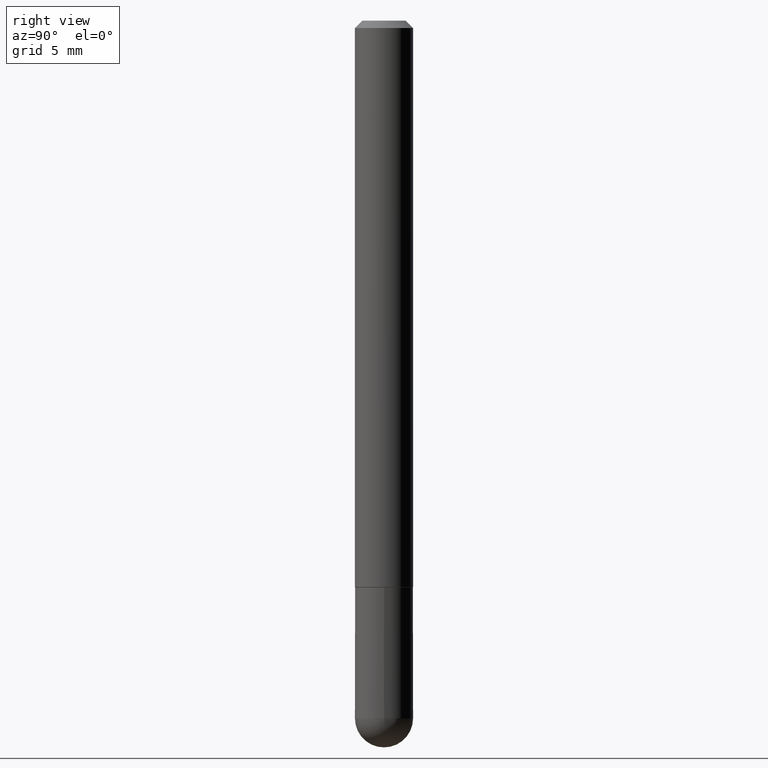
[diagram: clean part render]
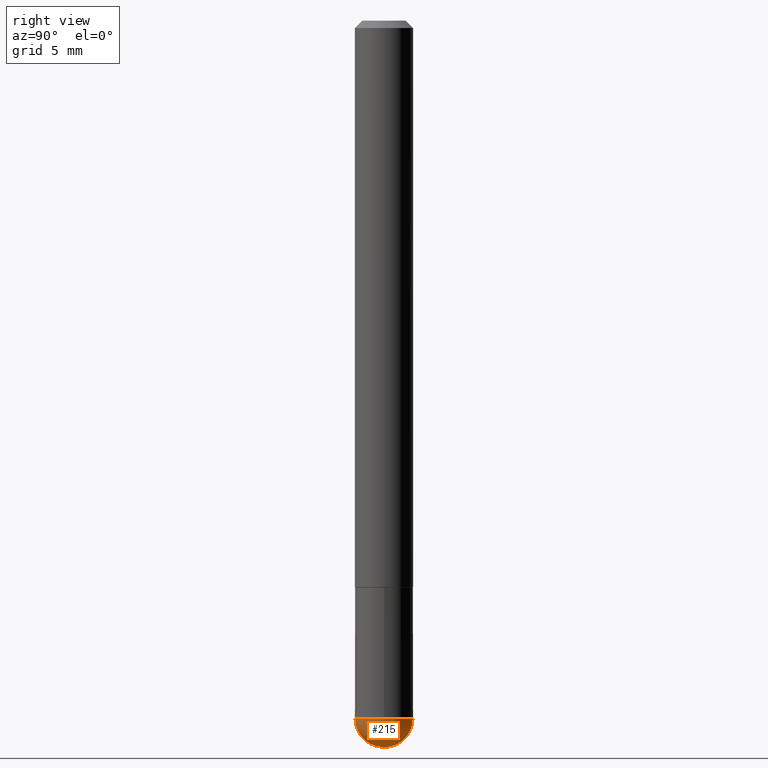
[diagram: same view with one face highlighted and labeled with its STEP entity id]
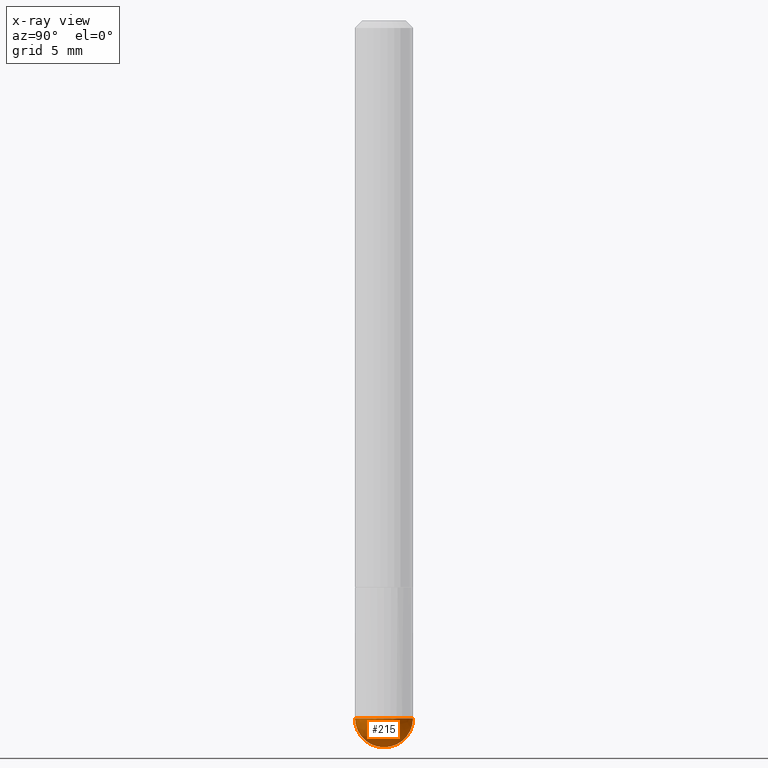
[diagram: x-ray of the same camera — body ghosted, the highlighted face saturated]
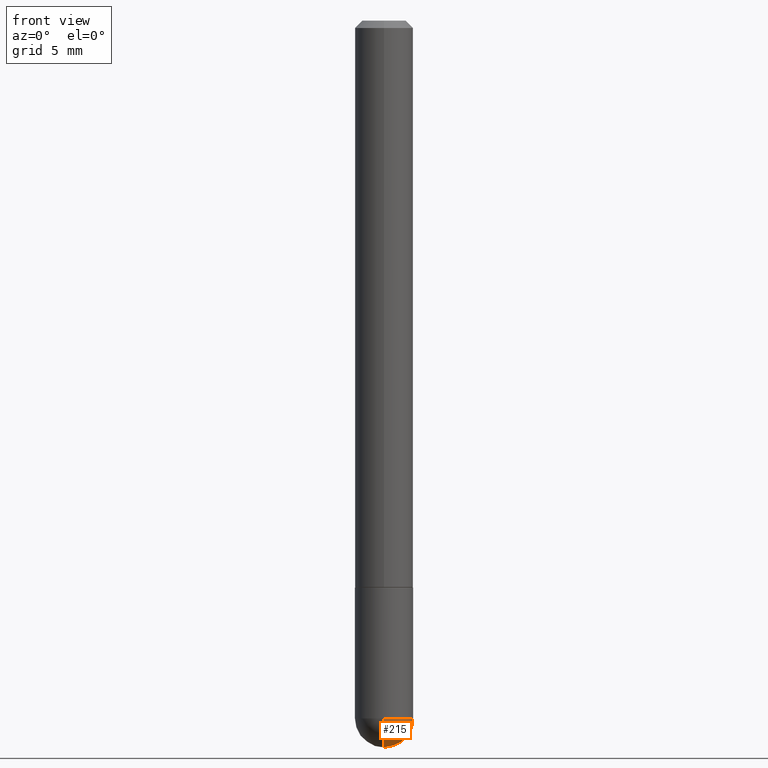
[diagram: same view with one face highlighted and labeled with its STEP entity id]
A machine part, right view. The second image highlights one B-rep face of the part: STEP entity #215.
The next image is the same camera in x-ray: the body ghosted, the highlighted face saturated — about 0% of this face is hidden behind the body in this view.
A second angle (front view) of the same face is appended — the face is thin or edge-on in the first view.
In plain terms, the highlighted spherical surface has radius 2.0003 mm.
Its self-contained STEP definition (entity closure, byte-faithful):
#1 = AXIS2_PLACEMENT_3D ( 'NONE', #28, #101, #190 ) ;
#5 = CARTESIAN_POINT ( 'NONE',  ( -5.595524044110351185E-16, -0.07875000000000693945, -1.889750000000000041 ) ) ;
#14 = AXIS2_PLACEMENT_3D ( 'NONE', #219, #34, #214 ) ;
#21 = ORIENTED_EDGE ( 'NONE', *, *, #61, .T. ) ;
#28 = CARTESIAN_POINT ( 'NONE',  ( 4.290204898574475789E-29, -7.072209228218884542E-15, -1.889750000000000041 ) ) ;
#34 = DIRECTION ( 'NONE',  ( -2.445468806185136597E-29, 3.491481338843145583E-15, 1.000000000000000000 ) ) ;
#52 = ORIENTED_EDGE ( 'NONE', *, *, #353, .F. ) ;
#56 = DIRECTION ( 'NONE',  ( 1.000000000000000000, -6.982962677686265922E-15, 4.883557194083112340E-29 ) ) ;
#57 = AXIS2_PLACEMENT_3D ( 'NONE', #68, #136, #379 ) ;
#61 = EDGE_CURVE ( 'NONE', #74, #245, #341, .T. ) ;
#68 = CARTESIAN_POINT ( 'NONE',  ( 4.621324676488362597E-29, -6.598026860078835823E-15, -1.889750000000000263 ) ) ;
#74 = VERTEX_POINT ( 'NONE', #177 ) ;
#83 = VERTEX_POINT ( 'NONE', #325 ) ;
#90 = VERTEX_POINT ( 'NONE', #5 ) ;
#101 = DIRECTION ( 'NONE',  ( -1.000000000000000000, 6.982962677686265922E-15, -4.883557194083112340E-29 ) ) ;
#130 = DIRECTION ( 'NONE',  ( -1.000000000000000000, 7.105427357601001070E-15, -4.926315508542082329E-29 ) ) ;
#136 = DIRECTION ( 'NONE',  ( -2.445468806185136597E-29, 3.491481338843145583E-15, 1.000000000000000000 ) ) ;
#145 = DIRECTION ( 'NONE',  ( 6.982962677686266711E-15, 1.000000000000000000, 0.000000000000000000 ) ) ;
#177 = CARTESIAN_POINT ( 'NONE',  ( 4.486152784325199885E-29, -7.342341336881140459E-15, -1.968500000000000361 ) ) ;
#178 = EDGE_LOOP ( 'NONE', ( #52, #21, #228, #303 ) ) ;
#190 = DIRECTION ( 'NONE',  ( 6.982962677686265922E-15, 1.000000000000000000, -3.469013325287941460E-15 ) ) ;
#214 = DIRECTION ( 'NONE',  ( 1.000000000000000000, -6.982962677686264344E-15, 0.000000000000000000 ) ) ;
#215 = ADVANCED_FACE ( 'NONE', ( #223 ), #338, .T. ) ;
#219 = CARTESIAN_POINT ( 'NONE',  ( 4.621324676488362597E-29, -6.598026860078835823E-15, -1.889750000000000263 ) ) ;
#223 = FACE_OUTER_BOUND ( 'NONE', #178, .T. ) ;
#228 = ORIENTED_EDGE ( 'NONE', *, *, #265, .F. ) ;
#235 = EDGE_CURVE ( 'NONE', #90, #83, #241, .T. ) ;
#241 = CIRCLE ( 'NONE', #57, 0.07874999999999997280 ) ;
#245 = VERTEX_POINT ( 'NONE', #287 ) ;
#265 = EDGE_CURVE ( 'NONE', #83, #245, #304, .T. ) ;
#287 = CARTESIAN_POINT ( 'NONE',  ( 5.499083108678389024E-16, 0.07874999999999328371, -1.889750000000000485 ) ) ;
#303 = ORIENTED_EDGE ( 'NONE', *, *, #235, .F. ) ;
#304 = CIRCLE ( 'NONE', #14, 0.07874999999999997280 ) ;
#325 = CARTESIAN_POINT ( 'NONE',  ( 0.07874999999999997280, -6.529331964737094333E-15, -1.889750000000000263 ) ) ;
#327 = CARTESIAN_POINT ( 'NONE',  ( 4.290204898574475789E-29, -7.072209228218884542E-15, -1.889750000000000041 ) ) ;
#338 = SPHERICAL_SURFACE ( 'NONE', #1, 0.07875000000000026423 ) ;
#341 = CIRCLE ( 'NONE', #404, 0.07875000000000026423 ) ;
#353 = EDGE_CURVE ( 'NONE', #74, #90, #393, .T. ) ;
#364 = CARTESIAN_POINT ( 'NONE',  ( 4.290204898574475789E-29, -7.072209228218884542E-15, -1.889750000000000041 ) ) ;
#375 = DIRECTION ( 'NONE',  ( -7.105427357601000281E-15, -1.000000000000000000, 0.000000000000000000 ) ) ;
#379 = DIRECTION ( 'NONE',  ( 1.000000000000000000, -6.982962677686264344E-15, 0.000000000000000000 ) ) ;
#385 = AXIS2_PLACEMENT_3D ( 'NONE', #364, #130, #375 ) ;
#393 = CIRCLE ( 'NONE', #385, 0.07875000000000026423 ) ;
#404 = AXIS2_PLACEMENT_3D ( 'NONE', #327, #56, #145 ) ;